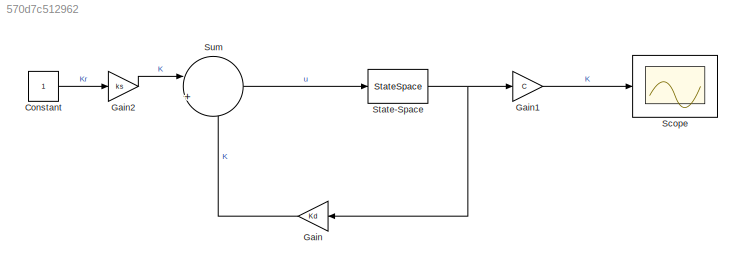
MODEL slx_570d7c512962
KIND model
CONFIG AbsTol = auto
CONFIG EnableMultiTasking = off
CONFIG FixedStep = auto
CONFIG MaxStep = auto
CONFIG MinStep = auto
CONFIG RelTol = 1e-3
CONFIG SampleTimeConstraint = Unconstrained
CONFIG SolverName = VariableStepAuto
CONFIG StartTime = 0.0
CONFIG StopTime = 10.0
BLOCK [Constant] Constant
BLOCK [Gain] Gain
  Gain = Kd
  NameLocation = top
BLOCK [Gain] Gain1
  Gain = C
BLOCK [Gain] Gain2
  Gain = ks
BLOCK [Scope] Scope
  Floating = off
  NumInputPorts = 1
  ScopeSpecificationString = Simulink.scopes.TimeScopeBlockCfg('CurrentConfiguration', extmgr.ConfigurationSet(extmgr.Configuration('Core','General UI',true),extmgr.Configuration('Core','Source UI',true),extmgr.Configuration('Sources','WiredSimulink',true),extmgr.Configuration('Visuals','Time Domain',true),extmgr.Configuration('Tools','Plot Navigation',true),extmgr.Configuration('Tools','Measurements',true)),'Version','2024a'...<+1ch>
BLOCK [StateSpace] State-Space
  A = A
  B = B
  C = I
  D = [0; 0; 0]
  InitialCondition = 0
BLOCK [Sum] Sum
  Inputs = |+-
LINE Constant:1 -> Gain2:1
LINE Gain1:1 -> Scope:1
LINE Gain2:1 -> Sum:1
LINE Gain:1 -> Sum:2
NET State-Space:1 -> Gain1:1, Gain:1
LINE Sum:1 -> State-Space:1
note: NET lines group one-source signal fan-out (src -> all destinations, sorted); 1:1 wires keep LINE
